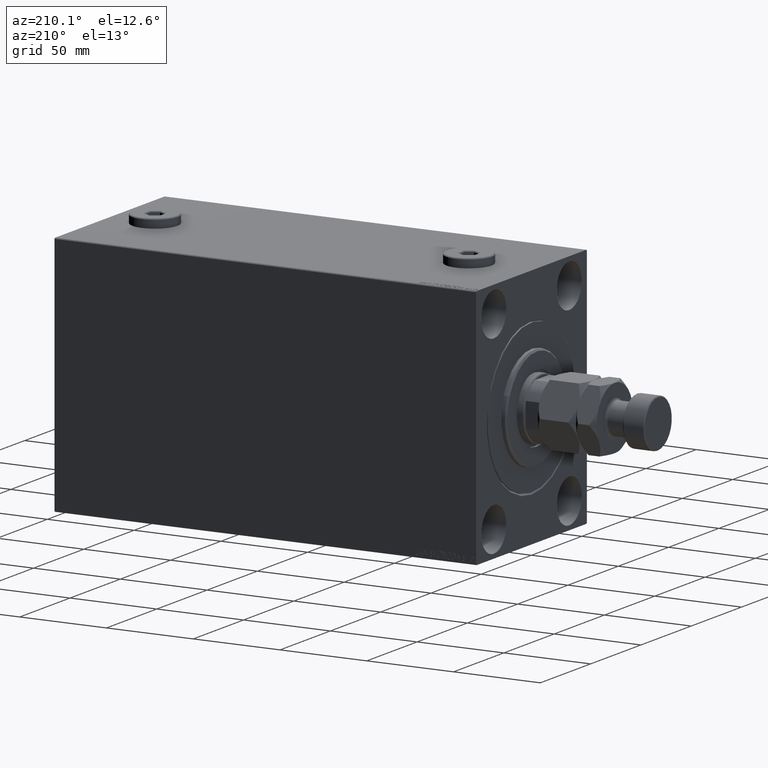
[diagram: clean part render]
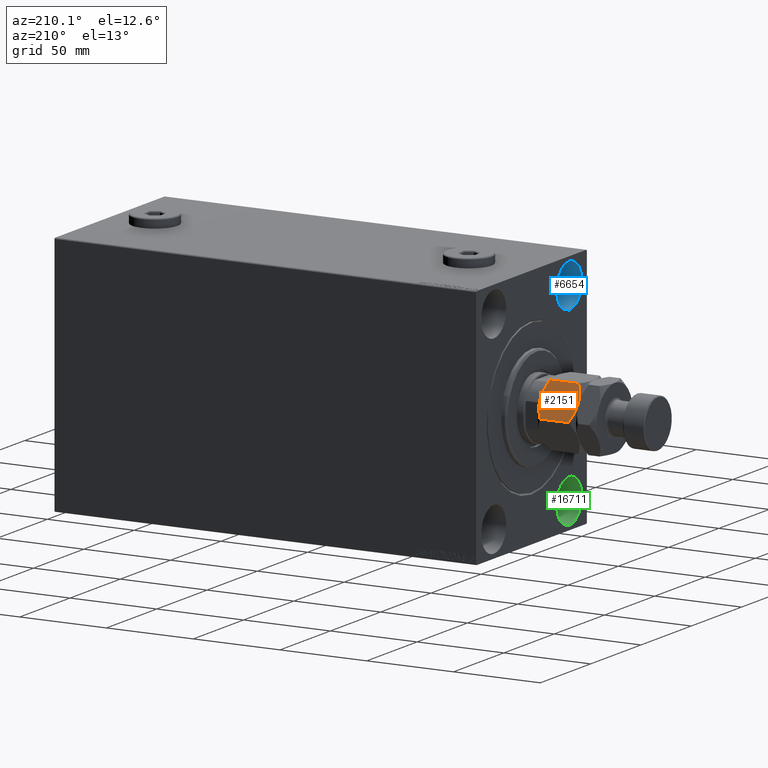
[diagram: same view with three faces highlighted in distinct colors, each labeled with its STEP entity id]
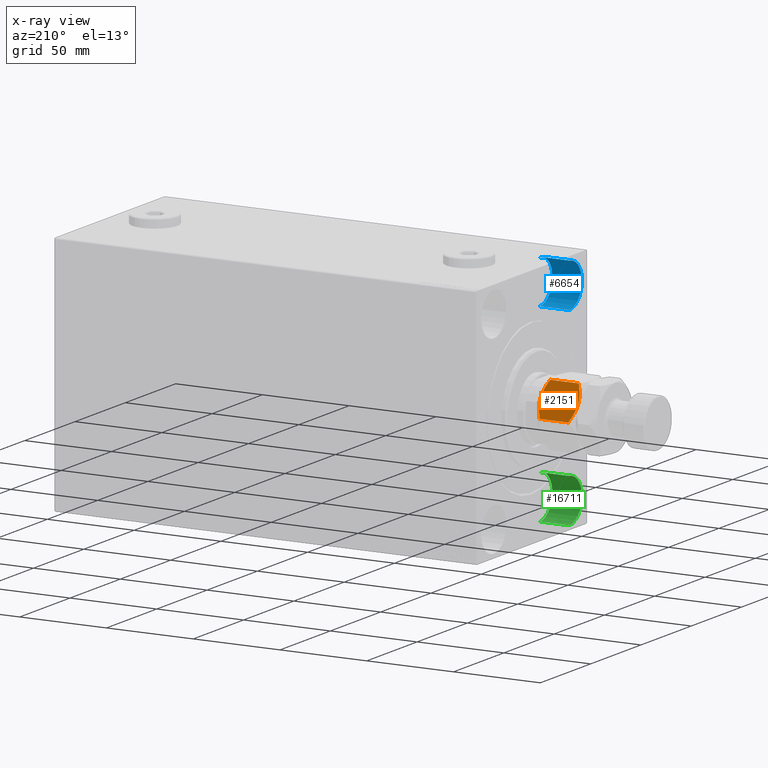
[diagram: x-ray of the same camera — body ghosted, the three highlighted faces saturated]
A machine part, auxiliary view with three faces highlighted in distinct colors.
The next image is the same camera in x-ray (body ghosted, the three faces saturated) — at least one of them is partly hidden behind the body in this view.
Their STEP definitions:

[orange] entity #2151 — the highlighted planar face has unit normal (-0, -0.866, -0.5).
#492 = CARTESIAN_POINT ( 'NONE',  ( 8.999999999999998224, 15.58845726811989429, 0.000000000000000000 ) ) ;
#1877 = CARTESIAN_POINT ( 'NONE',  ( 9.790461530629873010, 15.13208409062669624, 21.98266714352591578 ) ) ;
#2151 = ADVANCED_FACE ( 'NONE', ( #22674 ), #37167, .F. ) ;
#2416 = CARTESIAN_POINT ( 'NONE',  ( 18.00000000000000000, 10.39230484541326227, 22.00000000000000000 ) ) ;
#2507 = DIRECTION ( 'NONE',  ( -0.000000000000000000, -0.000000000000000000, -1.000000000000000000 ) ) ;
#2741 = CARTESIAN_POINT ( 'NONE',  ( 0.000000000000000000, 20.78460969082652454, 22.00000000000000000 ) ) ;
#3755 = VERTEX_POINT ( 'NONE', #492 ) ;
#4025 = ORIENTED_EDGE ( 'NONE', *, *, #31946, .F. ) ;
#4483 = CARTESIAN_POINT ( 'NONE',  ( 15.13928418966203004, 12.04393988858690179, 1.272574701504239680 ) ) ;
#4739 = CARTESIAN_POINT ( 'NONE',  ( 9.000000000000000000, 15.58845726811989074, 22.00000000000000000 ) ) ;
#5305 = CARTESIAN_POINT ( 'NONE',  ( 2.854601888853809388, 19.13650452186755757, 1.277383077889868046 ) ) ;
#5425 = EDGE_CURVE ( 'NONE', #27531, #42379, #24084, .T. ) ;
#6072 = LINE ( 'NONE', #2741, #8866 ) ;
#8866 = VECTOR ( 'NONE', #2507, 1000.000000000000000 ) ;
#8876 = CARTESIAN_POINT ( 'NONE',  ( 7.023280245922045140, 16.72971695024924443, 0.1387225990985735125 ) ) ;
#9586 = CARTESIAN_POINT ( 'NONE',  ( 8.999999999999998224, 15.58845726811989429, 0.000000000000000000 ) ) ;
#10404 = EDGE_CURVE ( 'NONE', #12939, #3755, #38111, .T. ) ;
#11351 = ORIENTED_EDGE ( 'NONE', *, *, #5425, .T. ) ;
#12794 = CARTESIAN_POINT ( 'NONE',  ( 9.000000000000000000, 15.58845726811989074, 22.00000000000000000 ) ) ;
#12923 = CARTESIAN_POINT ( 'NONE',  ( 8.209538469370125213, 16.04483044561309768, 0.01733285647408576435 ) ) ;
#12939 = VERTEX_POINT ( 'NONE', #41360 ) ;
#13082 = VERTEX_POINT ( 'NONE', #28008 ) ;
#14067 = AXIS2_PLACEMENT_3D ( 'NONE', #40033, #40971, #44301 ) ;
#15684 = CARTESIAN_POINT ( 'NONE',  ( 8.999999999999998224, 15.58845726811989429, 0.000000000000000000 ) ) ;
#15924 = CARTESIAN_POINT ( 'NONE',  ( 10.56546083169953754, 14.68463803553234825, -3.293264098924718535E-15 ) ) ;
#16709 = DIRECTION ( 'NONE',  ( -0.000000000000000000, -0.000000000000000000, -1.000000000000000000 ) ) ;
#17337 = EDGE_CURVE ( 'NONE', #3755, #42379, #18896, .T. ) ;
#18896 = B_SPLINE_CURVE_WITH_KNOTS ( 'NONE', 3,
 ( #15684, #15924, #29957, #4483, #19264, #44689 ),
 .UNSPECIFIED., .F., .F.,
 ( 4, 2, 4 ),
 ( 0.01077282027732746894, 0.01612137750481873466, 0.02146993473231000038 ),
 .UNSPECIFIED. ) ;
#19264 = CARTESIAN_POINT ( 'NONE',  ( 16.59030399953601531, 11.20619321075668218, 1.970721325483050235 ) ) ;
#19762 = CARTESIAN_POINT ( 'NONE',  ( 15.14539811114618573, 12.04041001437222214, 20.72261692211012729 ) ) ;
#22674 = FACE_OUTER_BOUND ( 'NONE', #31319, .T. ) ;
#22842 = CARTESIAN_POINT ( 'NONE',  ( 12.14199022028319774, 13.77442836864821629, 21.65943689774472602 ) ) ;
#23035 = CARTESIAN_POINT ( 'NONE',  ( 2.860715810337963738, 19.13297464765287259, 20.72742529849575277 ) ) ;
#23313 = CARTESIAN_POINT ( 'NONE',  ( 12.90267270303527525, 13.33524813246346952, 21.46291444417098759 ) ) ;
#23509 = CARTESIAN_POINT ( 'NONE',  ( -2.339913671058857151E-16, 20.78460969082652454, 19.21539030917348256 ) ) ;
#23749 = CARTESIAN_POINT ( 'NONE',  ( 1.409696000463982912, 19.97072132548310108, 20.02927867451694510 ) ) ;
#23797 = CARTESIAN_POINT ( 'NONE',  ( 18.00000000000000000, 10.39230484541326227, 19.21539030917347901 ) ) ;
#24059 = EDGE_CURVE ( 'NONE', #13082, #12939, #6072, .T. ) ;
#24084 = LINE ( 'NONE', #2416, #44541 ) ;
#26561 = B_SPLINE_CURVE_WITH_KNOTS ( 'NONE', 3,
 ( #12794, #34667, #34919, #23035, #23749, #23509 ),
 .UNSPECIFIED., .F., .F.,
 ( 4, 2, 4 ),
 ( 0.01077282027732746894, 0.01612137750481873466, 0.02146993473231000385 ),
 .UNSPECIFIED. ) ;
#26654 = CARTESIAN_POINT ( 'NONE',  ( 16.58866960374795241, 11.20713682960488100, 20.03022229336509596 ) ) ;
#26958 = CARTESIAN_POINT ( 'NONE',  ( 18.00000000000000000, 10.39230484541326227, 2.784609690826518325 ) ) ;
#26981 = CARTESIAN_POINT ( 'NONE',  ( 1.411330396252046260, 19.96977770663490759, 1.969777706634896708 ) ) ;
#27215 = CARTESIAN_POINT ( 'NONE',  ( 5.097327296964719423, 17.84166640377631197, 0.5370855558290075216 ) ) ;
#27531 = VERTEX_POINT ( 'NONE', #30985 ) ;
#27760 = EDGE_CURVE ( 'NONE', #45825, #13082, #26561, .T. ) ;
#28008 = CARTESIAN_POINT ( 'NONE',  ( -2.339913671058857151E-16, 20.78460969082652454, 19.21539030917348256 ) ) ;
#29957 = CARTESIAN_POINT ( 'NONE',  ( 12.10430252359947900, 13.79618737047370125, 0.2763959071215808527 ) ) ;
#30985 = CARTESIAN_POINT ( 'NONE',  ( 18.00000000000000000, 10.39230484541326227, 19.21539030917347901 ) ) ;
#31319 = EDGE_LOOP ( 'NONE', ( #42952, #41471, #42849, #4025, #11351, #43774 ) ) ;
#31946 = EDGE_CURVE ( 'NONE', #27531, #45825, #41601, .T. ) ;
#34010 = CARTESIAN_POINT ( 'NONE',  ( 9.394125676616230436, 15.36090870263096875, 22.00000000000000000 ) ) ;
#34667 = CARTESIAN_POINT ( 'NONE',  ( 7.434539168300457135, 16.49227650070744033, 22.00000000000000711 ) ) ;
#34919 = CARTESIAN_POINT ( 'NONE',  ( 5.895697476400520110, 17.38072716576608201, 21.72360409287842131 ) ) ;
#37167 = PLANE ( 'NONE',  #14067 ) ;
#37892 = CARTESIAN_POINT ( 'NONE',  ( 8.605874323383767788, 15.81600583360882162, -3.502481236896532691E-15 ) ) ;
#38111 = B_SPLINE_CURVE_WITH_KNOTS ( 'NONE', 3,
 ( #45265, #26981, #5305, #27215, #45503, #8876, #38364, #12923, #37892, #9586 ),
 .UNSPECIFIED., .F., .F.,
 ( 4, 2, 2, 2, 4 ),
 ( 2.544307986815284985E-07, 0.005386537354063076002, 0.008079678815695275074, 0.009426249546511372007, 0.01077282027732746894 ),
 .UNSPECIFIED. ) ;
#38277 = CARTESIAN_POINT ( 'NONE',  ( 10.97671975407794953, 14.44719758599053705, 21.86127740090141458 ) ) ;
#38364 = CARTESIAN_POINT ( 'NONE',  ( 7.415748492146453152, 16.50312530264320898, 0.08694689011815050217 ) ) ;
#40033 = CARTESIAN_POINT ( 'NONE',  ( 18.00000000000000000, 10.39230484541326227, 22.00000000000000000 ) ) ;
#40971 = DIRECTION ( 'NONE',  ( -0.4999999999999999445, -0.8660254037844387076, 0.000000000000000000 ) ) ;
#41360 = CARTESIAN_POINT ( 'NONE',  ( -1.065242688631141971E-15, 20.78460969082652454, 2.784609690826513440 ) ) ;
#41463 = CARTESIAN_POINT ( 'NONE',  ( 9.000000000000000000, 15.58845726811989074, 22.00000000000000000 ) ) ;
#41471 = ORIENTED_EDGE ( 'NONE', *, *, #24059, .F. ) ;
#41601 = B_SPLINE_CURVE_WITH_KNOTS ( 'NONE', 3,
 ( #23797, #26654, #19762, #23313, #22842, #38277, #44951, #1877, #34010, #4739 ),
 .UNSPECIFIED., .F., .F.,
 ( 4, 2, 2, 2, 4 ),
 ( 2.544307986796311447E-07, 0.005386537354063075135, 0.008079678815695273339, 0.009426249546511372007, 0.01077282027732746894 ),
 .UNSPECIFIED. ) ;
#42379 = VERTEX_POINT ( 'NONE', #26958 ) ;
#42849 = ORIENTED_EDGE ( 'NONE', *, *, #27760, .F. ) ;
#42952 = ORIENTED_EDGE ( 'NONE', *, *, #10404, .F. ) ;
#43774 = ORIENTED_EDGE ( 'NONE', *, *, #17337, .F. ) ;
#44301 = DIRECTION ( 'NONE',  ( 0.8660254037844387076, -0.4999999999999999445, 0.000000000000000000 ) ) ;
#44541 = VECTOR ( 'NONE', #16709, 1000.000000000000000 ) ;
#44689 = CARTESIAN_POINT ( 'NONE',  ( 18.00000000000000000, 10.39230484541326227, 2.784609690826518325 ) ) ;
#44951 = CARTESIAN_POINT ( 'NONE',  ( 10.58425150785354418, 14.67378923359658138, 21.91305310988184374 ) ) ;
#45265 = CARTESIAN_POINT ( 'NONE',  ( -1.065242688631141971E-15, 20.78460969082652454, 2.784609690826513440 ) ) ;
#45503 = CARTESIAN_POINT ( 'NONE',  ( 5.858009779716799592, 17.40248616759157230, 0.3405631022552657039 ) ) ;
#45825 = VERTEX_POINT ( 'NONE', #41463 ) ;

[blue] entity #6654 — the highlighted cylindrical surface (edge-blend (fillet) strip) has radius 12.5 mm, axis along (-1, -0, -0).
#930 = EDGE_CURVE ( 'NONE', #14463, #37091, #27736, .T. ) ;
#1908 = CIRCLE ( 'NONE', #15568, 12.49999999999999645 ) ;
#2738 = CARTESIAN_POINT ( 'NONE',  ( 0.000000000000000000, -37.50000000000000711, 67.50000000000000000 ) ) ;
#4385 = CARTESIAN_POINT ( 'NONE',  ( 0.000000000000000000, -37.50000000000000711, 55.00000000000000711 ) ) ;
#4566 = DIRECTION ( 'NONE',  ( 0.000000000000000000, 0.000000000000000000, 1.000000000000000000 ) ) ;
#6654 = ADVANCED_FACE ( 'NONE', ( #7894 ), #18415, .F. ) ;
#7894 = FACE_OUTER_BOUND ( 'NONE', #11058, .T. ) ;
#9478 = AXIS2_PLACEMENT_3D ( 'NONE', #4385, #29388, #15348 ) ;
#11058 = EDGE_LOOP ( 'NONE', ( #32089, #36729, #45990, #37258 ) ) ;
#12267 = CARTESIAN_POINT ( 'NONE',  ( 17.00000000000000000, -37.50000000000000711, 42.50000000000000711 ) ) ;
#14463 = VERTEX_POINT ( 'NONE', #36923 ) ;
#15348 = DIRECTION ( 'NONE',  ( 0.000000000000000000, 0.000000000000000000, 1.000000000000000000 ) ) ;
#15568 = AXIS2_PLACEMENT_3D ( 'NONE', #17764, #32250, #21329 ) ;
#16783 = LINE ( 'NONE', #35557, #33168 ) ;
#17060 = VERTEX_POINT ( 'NONE', #24308 ) ;
#17764 = CARTESIAN_POINT ( 'NONE',  ( 17.00000000000000000, -37.50000000000000711, 55.00000000000000711 ) ) ;
#18415 = CYLINDRICAL_SURFACE ( 'NONE', #23338, 12.49999999999999645 ) ;
#18559 = EDGE_CURVE ( 'NONE', #17060, #27896, #1908, .T. ) ;
#19556 = EDGE_CURVE ( 'NONE', #17060, #14463, #37478, .T. ) ;
#21329 = DIRECTION ( 'NONE',  ( 0.000000000000000000, 0.000000000000000000, 1.000000000000000000 ) ) ;
#23338 = AXIS2_PLACEMENT_3D ( 'NONE', #37161, #33360, #4566 ) ;
#24308 = CARTESIAN_POINT ( 'NONE',  ( 17.00000000000000000, -37.50000000000000711, 42.50000000000000711 ) ) ;
#27318 = EDGE_CURVE ( 'NONE', #27896, #37091, #16783, .T. ) ;
#27723 = DIRECTION ( 'NONE',  ( -1.000000000000000000, -0.000000000000000000, -0.000000000000000000 ) ) ;
#27736 = CIRCLE ( 'NONE', #9478, 12.49999999999999645 ) ;
#27896 = VERTEX_POINT ( 'NONE', #28213 ) ;
#28213 = CARTESIAN_POINT ( 'NONE',  ( 17.00000000000000000, -37.50000000000000711, 67.50000000000000000 ) ) ;
#29388 = DIRECTION ( 'NONE',  ( -1.000000000000000000, 0.000000000000000000, 0.000000000000000000 ) ) ;
#32089 = ORIENTED_EDGE ( 'NONE', *, *, #18559, .F. ) ;
#32250 = DIRECTION ( 'NONE',  ( -1.000000000000000000, 0.000000000000000000, 0.000000000000000000 ) ) ;
#33168 = VECTOR ( 'NONE', #27723, 1000.000000000000000 ) ;
#33360 = DIRECTION ( 'NONE',  ( -1.000000000000000000, -0.000000000000000000, -0.000000000000000000 ) ) ;
#35557 = CARTESIAN_POINT ( 'NONE',  ( 17.00000000000000000, -37.50000000000000711, 67.50000000000000000 ) ) ;
#36729 = ORIENTED_EDGE ( 'NONE', *, *, #19556, .T. ) ;
#36923 = CARTESIAN_POINT ( 'NONE',  ( 0.000000000000000000, -37.50000000000000711, 42.50000000000000711 ) ) ;
#37091 = VERTEX_POINT ( 'NONE', #2738 ) ;
#37161 = CARTESIAN_POINT ( 'NONE',  ( 17.00000000000000000, -37.50000000000000711, 55.00000000000000711 ) ) ;
#37237 = DIRECTION ( 'NONE',  ( -1.000000000000000000, -0.000000000000000000, -0.000000000000000000 ) ) ;
#37258 = ORIENTED_EDGE ( 'NONE', *, *, #27318, .F. ) ;
#37478 = LINE ( 'NONE', #12267, #44483 ) ;
#44483 = VECTOR ( 'NONE', #37237, 1000.000000000000000 ) ;
#45990 = ORIENTED_EDGE ( 'NONE', *, *, #930, .T. ) ;

[green] entity #16711 — the highlighted cylindrical surface (edge-blend (fillet) strip) has radius 12.5 mm, axis along (-1, -0, -0).
#1170 = CARTESIAN_POINT ( 'NONE',  ( 17.00000000000000000, -37.50000000000002132, -42.49999999999999289 ) ) ;
#1699 = VERTEX_POINT ( 'NONE', #1170 ) ;
#1741 = FACE_OUTER_BOUND ( 'NONE', #6574, .T. ) ;
#1972 = CYLINDRICAL_SURFACE ( 'NONE', #30750, 12.49999999999999645 ) ;
#2078 = CIRCLE ( 'NONE', #32481, 12.49999999999999645 ) ;
#5213 = ORIENTED_EDGE ( 'NONE', *, *, #24771, .T. ) ;
#6574 = EDGE_LOOP ( 'NONE', ( #10158, #40893, #5213, #27696 ) ) ;
#7439 = DIRECTION ( 'NONE',  ( -1.000000000000000000, -0.000000000000000000, -0.000000000000000000 ) ) ;
#9165 = VECTOR ( 'NONE', #7439, 1000.000000000000000 ) ;
#10158 = ORIENTED_EDGE ( 'NONE', *, *, #13701, .F. ) ;
#10766 = CARTESIAN_POINT ( 'NONE',  ( 17.00000000000000000, -37.50000000000002132, -67.49999999999998579 ) ) ;
#11695 = CARTESIAN_POINT ( 'NONE',  ( 17.00000000000000000, -37.50000000000002132, -54.99999999999999289 ) ) ;
#12148 = DIRECTION ( 'NONE',  ( -1.000000000000000000, -0.000000000000000000, -0.000000000000000000 ) ) ;
#12177 = DIRECTION ( 'NONE',  ( -1.000000000000000000, 0.000000000000000000, 0.000000000000000000 ) ) ;
#13701 = EDGE_CURVE ( 'NONE', #17648, #1699, #46317, .T. ) ;
#14469 = CARTESIAN_POINT ( 'NONE',  ( 0.000000000000000000, -37.50000000000002132, -67.49999999999998579 ) ) ;
#15728 = LINE ( 'NONE', #23098, #18974 ) ;
#16711 = ADVANCED_FACE ( 'NONE', ( #1741 ), #1972, .F. ) ;
#17648 = VERTEX_POINT ( 'NONE', #10766 ) ;
#18287 = VERTEX_POINT ( 'NONE', #14469 ) ;
#18974 = VECTOR ( 'NONE', #12148, 1000.000000000000000 ) ;
#23098 = CARTESIAN_POINT ( 'NONE',  ( 17.00000000000000000, -37.50000000000002132, -42.49999999999999289 ) ) ;
#23718 = VERTEX_POINT ( 'NONE', #27430 ) ;
#24771 = EDGE_CURVE ( 'NONE', #18287, #23718, #2078, .T. ) ;
#24854 = CARTESIAN_POINT ( 'NONE',  ( 17.00000000000000000, -37.50000000000002132, -67.49999999999998579 ) ) ;
#26709 = DIRECTION ( 'NONE',  ( 0.000000000000000000, 0.000000000000000000, 1.000000000000000000 ) ) ;
#27430 = CARTESIAN_POINT ( 'NONE',  ( 0.000000000000000000, -37.50000000000002132, -42.49999999999999289 ) ) ;
#27696 = ORIENTED_EDGE ( 'NONE', *, *, #34208, .F. ) ;
#29610 = AXIS2_PLACEMENT_3D ( 'NONE', #11695, #12177, #26709 ) ;
#30750 = AXIS2_PLACEMENT_3D ( 'NONE', #34105, #41232, #41460 ) ;
#32481 = AXIS2_PLACEMENT_3D ( 'NONE', #37303, #33036, #33734 ) ;
#33036 = DIRECTION ( 'NONE',  ( -1.000000000000000000, 0.000000000000000000, 0.000000000000000000 ) ) ;
#33734 = DIRECTION ( 'NONE',  ( 0.000000000000000000, 0.000000000000000000, 1.000000000000000000 ) ) ;
#34105 = CARTESIAN_POINT ( 'NONE',  ( 17.00000000000000000, -37.50000000000002132, -54.99999999999999289 ) ) ;
#34208 = EDGE_CURVE ( 'NONE', #1699, #23718, #15728, .T. ) ;
#36232 = LINE ( 'NONE', #24854, #9165 ) ;
#37303 = CARTESIAN_POINT ( 'NONE',  ( 0.000000000000000000, -37.50000000000002132, -54.99999999999999289 ) ) ;
#38256 = EDGE_CURVE ( 'NONE', #17648, #18287, #36232, .T. ) ;
#40893 = ORIENTED_EDGE ( 'NONE', *, *, #38256, .T. ) ;
#41232 = DIRECTION ( 'NONE',  ( -1.000000000000000000, -0.000000000000000000, -0.000000000000000000 ) ) ;
#41460 = DIRECTION ( 'NONE',  ( 0.000000000000000000, 0.000000000000000000, 1.000000000000000000 ) ) ;
#46317 = CIRCLE ( 'NONE', #29610, 12.49999999999999645 ) ;